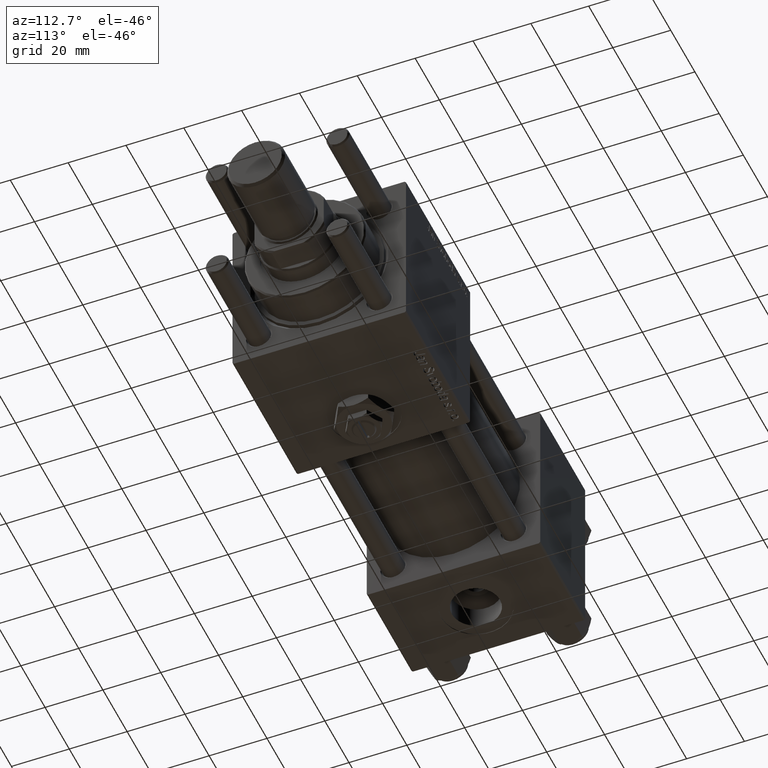
[diagram: clean part render]
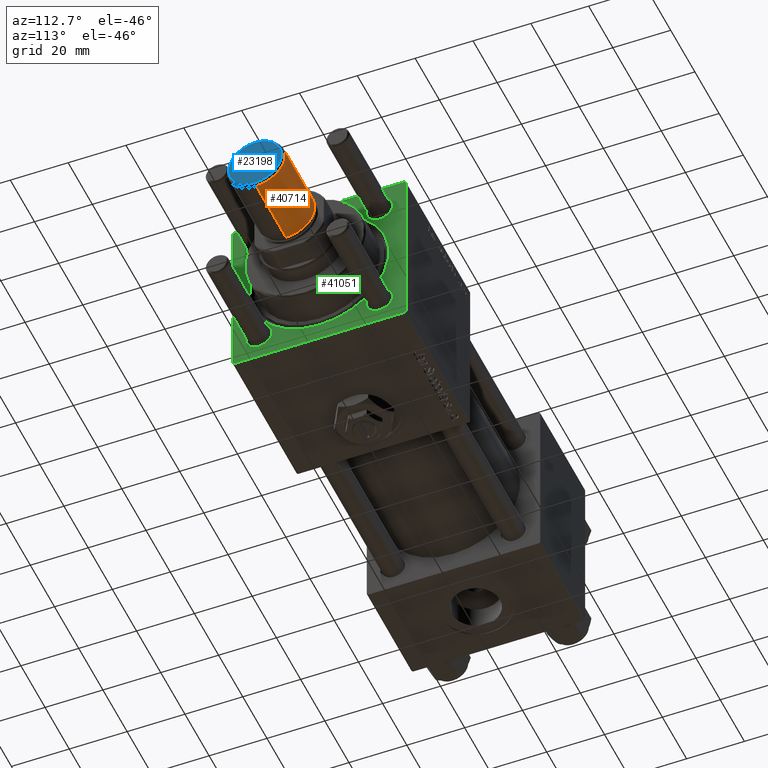
[diagram: same view with three faces highlighted in distinct colors, each labeled with its STEP entity id]
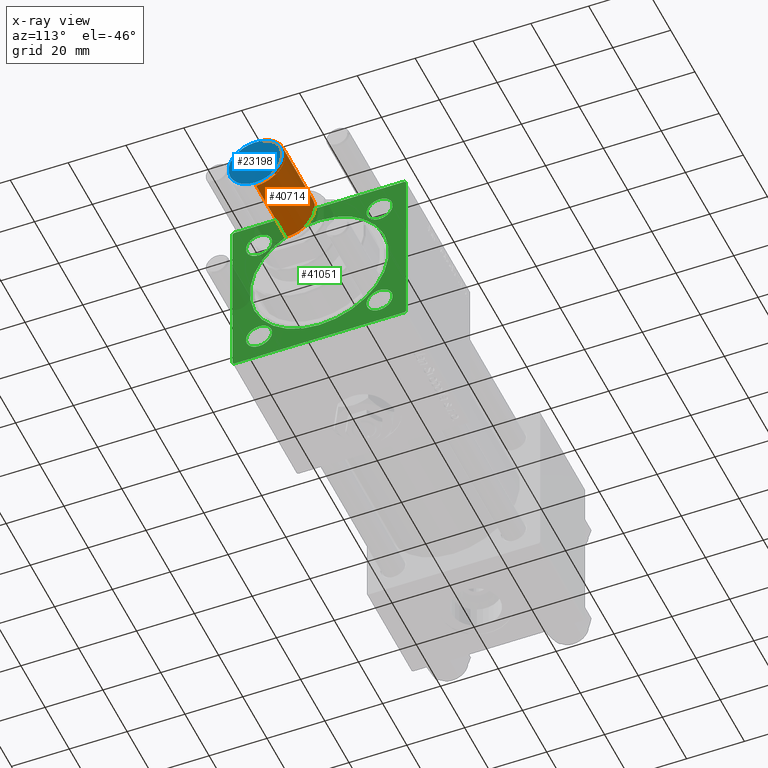
[diagram: x-ray of the same camera — body ghosted, the three highlighted faces saturated]
A machine part, auxiliary view with three faces highlighted in distinct colors.
The next image is the same camera in x-ray (body ghosted, the three faces saturated) — at least one of them is partly hidden behind the body in this view.
Their STEP definitions:

[orange] entity #40714 — the highlighted cylindrical surface (edge-blend (fillet) strip) has radius 10 mm, axis along (1, -0, -0).
#270 = ORIENTED_EDGE ( 'NONE', *, *, #18712, .F. ) ;
#2045 = VERTEX_POINT ( 'NONE', #10399 ) ;
#2431 = DIRECTION ( 'NONE',  ( -0.000000000000000000, -0.000000000000000000, 1.000000000000000000 ) ) ;
#6396 = CARTESIAN_POINT ( 'NONE',  ( 0.000000000000000000, 0.000000000000000000, 25.50000000000000000 ) ) ;
#7378 = EDGE_CURVE ( 'NONE', #24762, #2045, #30503, .T. ) ;
#8332 = VECTOR ( 'NONE', #40388, 1000.000000000000000 ) ;
#9000 = VERTEX_POINT ( 'NONE', #10221 ) ;
#10221 = CARTESIAN_POINT ( 'NONE',  ( -10.00000000000000000, 0.000000000000000000, 0.8000000000000055955 ) ) ;
#10399 = CARTESIAN_POINT ( 'NONE',  ( 10.00000000000000000, 1.224646799147353256E-15, 0.8000000000000055955 ) ) ;
#13096 = ORIENTED_EDGE ( 'NONE', *, *, #7378, .T. ) ;
#13770 = AXIS2_PLACEMENT_3D ( 'NONE', #30326, #2431, #16798 ) ;
#13809 = CARTESIAN_POINT ( 'NONE',  ( 0.000000000000000000, 0.000000000000000000, 25.50000000000000000 ) ) ;
#16798 = DIRECTION ( 'NONE',  ( 1.000000000000000000, 0.000000000000000000, 0.000000000000000000 ) ) ;
#17271 = CARTESIAN_POINT ( 'NONE',  ( 10.00000000000000000, 1.224646799147353256E-15, 25.50000000000000000 ) ) ;
#18086 = DIRECTION ( 'NONE',  ( -0.000000000000000000, -0.000000000000000000, -1.000000000000000000 ) ) ;
#18169 = CARTESIAN_POINT ( 'NONE',  ( -10.00000000000000000, 0.000000000000000000, 25.50000000000000000 ) ) ;
#18712 = EDGE_CURVE ( 'NONE', #24762, #24469, #54694, .T. ) ;
#19658 = AXIS2_PLACEMENT_3D ( 'NONE', #6396, #48691, #24686 ) ;
#24469 = VERTEX_POINT ( 'NONE', #18169 ) ;
#24686 = DIRECTION ( 'NONE',  ( -1.000000000000000000, 0.000000000000000000, 0.000000000000000000 ) ) ;
#24762 = VERTEX_POINT ( 'NONE', #48749 ) ;
#29796 = CYLINDRICAL_SURFACE ( 'NONE', #19658, 10.00000000000000000 ) ;
#30326 = CARTESIAN_POINT ( 'NONE',  ( 0.000000000000000000, 0.000000000000000000, 0.8000000000000055955 ) ) ;
#30503 = LINE ( 'NONE', #17271, #8332 ) ;
#32975 = CIRCLE ( 'NONE', #13770, 10.00000000000000000 ) ;
#36998 = CARTESIAN_POINT ( 'NONE',  ( -10.00000000000000000, 0.000000000000000000, 25.50000000000000000 ) ) ;
#37229 = DIRECTION ( 'NONE',  ( 0.000000000000000000, 0.000000000000000000, 1.000000000000000000 ) ) ;
#37517 = DIRECTION ( 'NONE',  ( 1.000000000000000000, 0.000000000000000000, 0.000000000000000000 ) ) ;
#37599 = EDGE_CURVE ( 'NONE', #2045, #9000, #32975, .T. ) ;
#38290 = EDGE_LOOP ( 'NONE', ( #270, #13096, #42536, #44676 ) ) ;
#38935 = VECTOR ( 'NONE', #18086, 1000.000000000000000 ) ;
#39091 = FACE_OUTER_BOUND ( 'NONE', #38290, .T. ) ;
#40388 = DIRECTION ( 'NONE',  ( -0.000000000000000000, -0.000000000000000000, -1.000000000000000000 ) ) ;
#40714 = ADVANCED_FACE ( 'NONE', ( #39091 ), #29796, .T. ) ;
#41510 = LINE ( 'NONE', #36998, #38935 ) ;
#42536 = ORIENTED_EDGE ( 'NONE', *, *, #37599, .T. ) ;
#43193 = AXIS2_PLACEMENT_3D ( 'NONE', #13809, #37229, #37517 ) ;
#44676 = ORIENTED_EDGE ( 'NONE', *, *, #49117, .F. ) ;
#48691 = DIRECTION ( 'NONE',  ( -0.000000000000000000, -0.000000000000000000, -1.000000000000000000 ) ) ;
#48749 = CARTESIAN_POINT ( 'NONE',  ( 10.00000000000000000, 1.224646799147353256E-15, 25.50000000000000000 ) ) ;
#49117 = EDGE_CURVE ( 'NONE', #24469, #9000, #41510, .T. ) ;
#54694 = CIRCLE ( 'NONE', #43193, 10.00000000000000000 ) ;

[blue] entity #23198 — the highlighted planar face has unit normal (-1, 0, 0).
#848 = DIRECTION ( 'NONE',  ( 0.000000000000000000, 0.000000000000000000, 1.000000000000000000 ) ) ;
#1341 = CIRCLE ( 'NONE', #56931, 9.199999999999992184 ) ;
#3743 = DIRECTION ( 'NONE',  ( 1.000000000000000000, 0.000000000000000000, 0.000000000000000000 ) ) ;
#6844 = ORIENTED_EDGE ( 'NONE', *, *, #15214, .T. ) ;
#10538 = VERTEX_POINT ( 'NONE', #20020 ) ;
#15214 = EDGE_CURVE ( 'NONE', #16754, #10538, #51687, .T. ) ;
#16754 = VERTEX_POINT ( 'NONE', #17088 ) ;
#17088 = CARTESIAN_POINT ( 'NONE',  ( -9.199999999999992184, 1.175660927181458645E-15, 0.000000000000000000 ) ) ;
#19125 = DIRECTION ( 'NONE',  ( 1.000000000000000000, 0.000000000000000000, -0.000000000000000000 ) ) ;
#20020 = CARTESIAN_POINT ( 'NONE',  ( 9.199999999999992184, 0.000000000000000000, 0.000000000000000000 ) ) ;
#20161 = DIRECTION ( 'NONE',  ( 1.000000000000000000, 0.000000000000000000, 0.000000000000000000 ) ) ;
#23198 = ADVANCED_FACE ( 'NONE', ( #59369 ), #27854, .F. ) ;
#27854 = PLANE ( 'NONE',  #46127 ) ;
#29617 = AXIS2_PLACEMENT_3D ( 'NONE', #31354, #36430, #3743 ) ;
#31354 = CARTESIAN_POINT ( 'NONE',  ( 0.000000000000000000, 0.000000000000000000, 0.000000000000000000 ) ) ;
#32636 = EDGE_CURVE ( 'NONE', #10538, #16754, #1341, .T. ) ;
#36430 = DIRECTION ( 'NONE',  ( -0.000000000000000000, -0.000000000000000000, -1.000000000000000000 ) ) ;
#41574 = EDGE_LOOP ( 'NONE', ( #53356, #6844 ) ) ;
#46127 = AXIS2_PLACEMENT_3D ( 'NONE', #51260, #848, #19125 ) ;
#51260 = CARTESIAN_POINT ( 'NONE',  ( 0.000000000000000000, 0.000000000000000000, 0.000000000000000000 ) ) ;
#51687 = CIRCLE ( 'NONE', #29617, 9.199999999999992184 ) ;
#53356 = ORIENTED_EDGE ( 'NONE', *, *, #32636, .T. ) ;
#56211 = CARTESIAN_POINT ( 'NONE',  ( 0.000000000000000000, 0.000000000000000000, 0.000000000000000000 ) ) ;
#56931 = AXIS2_PLACEMENT_3D ( 'NONE', #56211, #57086, #20161 ) ;
#57086 = DIRECTION ( 'NONE',  ( -0.000000000000000000, -0.000000000000000000, -1.000000000000000000 ) ) ;
#59369 = FACE_OUTER_BOUND ( 'NONE', #41574, .T. ) ;

[green] entity #41051 — the highlighted planar face has unit normal (-1, 0, 0).
#110 = EDGE_CURVE ( 'NONE', #46878, #16614, #46703, .T. ) ;
#364 = FACE_BOUND ( 'NONE', #9392, .T. ) ;
#918 = DIRECTION ( 'NONE',  ( 0.000000000000000000, 0.000000000000000000, 1.000000000000000000 ) ) ;
#967 = DIRECTION ( 'NONE',  ( -1.000000000000000000, 0.000000000000000000, -0.000000000000000000 ) ) ;
#1037 = ORIENTED_EDGE ( 'NONE', *, *, #44187, .T. ) ;
#1484 = CARTESIAN_POINT ( 'NONE',  ( 148.0000000000000000, -20.84999999999999076, 20.85000000000000497 ) ) ;
#1856 = VECTOR ( 'NONE', #4844, 1000.000000000000114 ) ;
#1903 = EDGE_CURVE ( 'NONE', #31122, #41030, #48562, .T. ) ;
#2242 = VERTEX_POINT ( 'NONE', #47537 ) ;
#2552 = CIRCLE ( 'NONE', #11142, 4.500000000000017764 ) ;
#2691 = EDGE_CURVE ( 'NONE', #42427, #39021, #2552, .T. ) ;
#3554 = CARTESIAN_POINT ( 'NONE',  ( 148.0000000000000000, 30.00000000000000000, -29.49999999999999289 ) ) ;
#4005 = AXIS2_PLACEMENT_3D ( 'NONE', #7614, #29840, #7914 ) ;
#4576 = AXIS2_PLACEMENT_3D ( 'NONE', #27123, #45727, #9409 ) ;
#4844 = DIRECTION ( 'NONE',  ( -0.000000000000000000, -0.7071067811865474617, -0.7071067811865474617 ) ) ;
#5514 = CIRCLE ( 'NONE', #39030, 4.500000000000017764 ) ;
#5546 = CIRCLE ( 'NONE', #11256, 24.00000000000003908 ) ;
#5890 = CARTESIAN_POINT ( 'NONE',  ( 148.0000000000000000, 30.00000000000000000, -29.49999999999997868 ) ) ;
#6826 = AXIS2_PLACEMENT_3D ( 'NONE', #48854, #26333, #12826 ) ;
#7156 = DIRECTION ( 'NONE',  ( -0.000000000000000000, 0.7071067811865474617, 0.7071067811865474617 ) ) ;
#7511 = EDGE_CURVE ( 'NONE', #44298, #23513, #47609, .T. ) ;
#7614 = CARTESIAN_POINT ( 'NONE',  ( 148.0000000000000000, 20.84999999999999787, 20.85000000000000142 ) ) ;
#7914 = DIRECTION ( 'NONE',  ( 0.000000000000000000, 0.000000000000000000, 1.000000000000000000 ) ) ;
#8195 = EDGE_LOOP ( 'NONE', ( #49791, #43462 ) ) ;
#8541 = CARTESIAN_POINT ( 'NONE',  ( 148.0000000000000000, 0.000000000000000000, 0.000000000000000000 ) ) ;
#8934 = EDGE_CURVE ( 'NONE', #32318, #21052, #19799, .T. ) ;
#9100 = EDGE_CURVE ( 'NONE', #14949, #41706, #10294, .T. ) ;
#9388 = VERTEX_POINT ( 'NONE', #25188 ) ;
#9391 = CARTESIAN_POINT ( 'NONE',  ( 148.0000000000000000, -20.84999999999999076, 20.85000000000000497 ) ) ;
#9392 = EDGE_LOOP ( 'NONE', ( #23575, #17628 ) ) ;
#9409 = DIRECTION ( 'NONE',  ( 0.000000000000000000, 0.000000000000000000, 1.000000000000000000 ) ) ;
#9612 = ORIENTED_EDGE ( 'NONE', *, *, #26142, .T. ) ;
#10294 = CIRCLE ( 'NONE', #4576, 4.500000000000017764 ) ;
#10625 = EDGE_CURVE ( 'NONE', #9388, #54661, #20608, .T. ) ;
#11142 = AXIS2_PLACEMENT_3D ( 'NONE', #39925, #49544, #45637 ) ;
#11256 = AXIS2_PLACEMENT_3D ( 'NONE', #8541, #46058, #26550 ) ;
#12069 = VERTEX_POINT ( 'NONE', #52747 ) ;
#12826 = DIRECTION ( 'NONE',  ( 0.000000000000000000, 0.000000000000000000, 1.000000000000000000 ) ) ;
#13914 = LINE ( 'NONE', #54157, #17168 ) ;
#13964 = DIRECTION ( 'NONE',  ( -1.000000000000000000, 0.000000000000000000, -0.000000000000000000 ) ) ;
#14097 = CARTESIAN_POINT ( 'NONE',  ( 148.0000000000000000, -29.50000000000000000, 29.99999999999999289 ) ) ;
#14430 = CARTESIAN_POINT ( 'NONE',  ( 148.0000000000000000, -30.00000000000000000, 29.49999999999999289 ) ) ;
#14626 = EDGE_CURVE ( 'NONE', #37764, #32318, #45961, .T. ) ;
#14949 = VERTEX_POINT ( 'NONE', #15740 ) ;
#15020 = DIRECTION ( 'NONE',  ( 0.000000000000000000, -1.000000000000000000, -1.156482317317871478E-16 ) ) ;
#15174 = EDGE_CURVE ( 'NONE', #9388, #47104, #13914, .T. ) ;
#15457 = DIRECTION ( 'NONE',  ( 0.000000000000000000, -1.000000000000000000, -1.156482317317871478E-16 ) ) ;
#15740 = CARTESIAN_POINT ( 'NONE',  ( 148.0000000000000000, 20.84999999999999787, -16.34999999999998366 ) ) ;
#16614 = VERTEX_POINT ( 'NONE', #35111 ) ;
#17168 = VECTOR ( 'NONE', #35838, 1000.000000000000114 ) ;
#17628 = ORIENTED_EDGE ( 'NONE', *, *, #20356, .T. ) ;
#18343 = FACE_BOUND ( 'NONE', #50709, .T. ) ;
#18975 = DIRECTION ( 'NONE',  ( 0.000000000000000000, 0.000000000000000000, 1.000000000000000000 ) ) ;
#19519 = LINE ( 'NONE', #56153, #25361 ) ;
#19799 = LINE ( 'NONE', #51936, #50595 ) ;
#20356 = EDGE_CURVE ( 'NONE', #39021, #42427, #42266, .T. ) ;
#20608 = LINE ( 'NONE', #21496, #25667 ) ;
#21052 = VERTEX_POINT ( 'NONE', #26116 ) ;
#21496 = CARTESIAN_POINT ( 'NONE',  ( 148.0000000000000000, 30.00000000000000000, 30.00000000000000000 ) ) ;
#21527 = ORIENTED_EDGE ( 'NONE', *, *, #10625, .F. ) ;
#22444 = CIRCLE ( 'NONE', #47349, 4.500000000000017764 ) ;
#23179 = CIRCLE ( 'NONE', #4005, 4.500000000000017764 ) ;
#23513 = VERTEX_POINT ( 'NONE', #28360 ) ;
#23575 = ORIENTED_EDGE ( 'NONE', *, *, #2691, .T. ) ;
#25188 = CARTESIAN_POINT ( 'NONE',  ( 148.0000000000000000, 30.00000000000000000, 29.50000000000000000 ) ) ;
#25361 = VECTOR ( 'NONE', #15020, 1000.000000000000000 ) ;
#25667 = VECTOR ( 'NONE', #48830, 1000.000000000000000 ) ;
#26116 = CARTESIAN_POINT ( 'NONE',  ( 148.0000000000000000, -30.00000000000000000, -29.49999999999998579 ) ) ;
#26142 = EDGE_CURVE ( 'NONE', #41030, #31122, #23179, .T. ) ;
#26333 = DIRECTION ( 'NONE',  ( -1.000000000000000000, 0.000000000000000000, -0.000000000000000000 ) ) ;
#26350 = AXIS2_PLACEMENT_3D ( 'NONE', #55585, #967, #46866 ) ;
#26550 = DIRECTION ( 'NONE',  ( 0.000000000000000000, 0.000000000000000000, 1.000000000000000000 ) ) ;
#26651 = ORIENTED_EDGE ( 'NONE', *, *, #15174, .T. ) ;
#26673 = ORIENTED_EDGE ( 'NONE', *, *, #40110, .T. ) ;
#26979 = CARTESIAN_POINT ( 'NONE',  ( 148.0000000000000000, 29.50000000000000000, 30.00000000000000000 ) ) ;
#27123 = CARTESIAN_POINT ( 'NONE',  ( 148.0000000000000000, 20.84999999999999787, -20.85000000000000142 ) ) ;
#28360 = CARTESIAN_POINT ( 'NONE',  ( 148.0000000000000000, 2.939152317953652628E-15, 24.00000000000003908 ) ) ;
#28555 = FACE_BOUND ( 'NONE', #35783, .T. ) ;
#29840 = DIRECTION ( 'NONE',  ( -1.000000000000000000, 0.000000000000000000, -0.000000000000000000 ) ) ;
#30840 = ORIENTED_EDGE ( 'NONE', *, *, #38535, .T. ) ;
#30932 = CARTESIAN_POINT ( 'NONE',  ( 148.0000000000000000, 20.84999999999999787, 20.85000000000000142 ) ) ;
#31026 = EDGE_CURVE ( 'NONE', #41706, #14949, #53046, .T. ) ;
#31122 = VERTEX_POINT ( 'NONE', #54108 ) ;
#32290 = DIRECTION ( 'NONE',  ( 0.000000000000000000, 0.000000000000000000, 1.000000000000000000 ) ) ;
#32318 = VERTEX_POINT ( 'NONE', #51276 ) ;
#32935 = CARTESIAN_POINT ( 'NONE',  ( 148.0000000000000000, 0.000000000000000000, -24.00000000000003908 ) ) ;
#33348 = FACE_BOUND ( 'NONE', #58343, .T. ) ;
#34397 = ORIENTED_EDGE ( 'NONE', *, *, #44149, .T. ) ;
#35086 = VECTOR ( 'NONE', #48863, 1000.000000000000114 ) ;
#35111 = CARTESIAN_POINT ( 'NONE',  ( 148.0000000000000000, -29.50000000000000000, -30.00000000000000000 ) ) ;
#35783 = EDGE_LOOP ( 'NONE', ( #49159, #42256 ) ) ;
#35838 = DIRECTION ( 'NONE',  ( 0.000000000000000000, -0.7071067811865474617, 0.7071067811865474617 ) ) ;
#36012 = DIRECTION ( 'NONE',  ( 0.000000000000000000, 0.000000000000000000, 1.000000000000000000 ) ) ;
#36694 = DIRECTION ( 'NONE',  ( -1.000000000000000000, 0.000000000000000000, -0.000000000000000000 ) ) ;
#37764 = VERTEX_POINT ( 'NONE', #14097 ) ;
#38535 = EDGE_CURVE ( 'NONE', #12069, #2242, #22444, .T. ) ;
#39021 = VERTEX_POINT ( 'NONE', #49262 ) ;
#39030 = AXIS2_PLACEMENT_3D ( 'NONE', #9391, #36694, #18975 ) ;
#39398 = CARTESIAN_POINT ( 'NONE',  ( 148.0000000000000000, 20.84999999999999787, -20.85000000000000142 ) ) ;
#39548 = CARTESIAN_POINT ( 'NONE',  ( 148.0000000000000000, -29.50000000000000000, -30.00000000000000000 ) ) ;
#39689 = DIRECTION ( 'NONE',  ( -1.000000000000000000, 0.000000000000000000, -0.000000000000000000 ) ) ;
#39925 = CARTESIAN_POINT ( 'NONE',  ( 148.0000000000000000, -20.84999999999999076, -20.85000000000000497 ) ) ;
#40110 = EDGE_CURVE ( 'NONE', #47104, #37764, #19519, .T. ) ;
#41030 = VERTEX_POINT ( 'NONE', #46279 ) ;
#41051 = ADVANCED_FACE ( 'NONE', ( #364, #51082, #18343, #33348, #28555, #41474 ), #51661, .F. ) ;
#41474 = FACE_OUTER_BOUND ( 'NONE', #43733, .T. ) ;
#41706 = VERTEX_POINT ( 'NONE', #58075 ) ;
#42023 = DIRECTION ( 'NONE',  ( -1.000000000000000000, 0.000000000000000000, -0.000000000000000000 ) ) ;
#42256 = ORIENTED_EDGE ( 'NONE', *, *, #53743, .T. ) ;
#42266 = CIRCLE ( 'NONE', #6826, 4.500000000000017764 ) ;
#42427 = VERTEX_POINT ( 'NONE', #53060 ) ;
#42774 = CARTESIAN_POINT ( 'NONE',  ( 148.0000000000000000, 30.00000000000000000, -29.99999999999999289 ) ) ;
#43462 = ORIENTED_EDGE ( 'NONE', *, *, #9100, .T. ) ;
#43733 = EDGE_LOOP ( 'NONE', ( #50381, #34397, #46788, #1037, #21527, #26651, #26673, #58082 ) ) ;
#43763 = LINE ( 'NONE', #39548, #35086 ) ;
#44149 = EDGE_CURVE ( 'NONE', #21052, #16614, #43763, .T. ) ;
#44187 = EDGE_CURVE ( 'NONE', #46878, #54661, #49461, .T. ) ;
#44298 = VERTEX_POINT ( 'NONE', #32935 ) ;
#45637 = DIRECTION ( 'NONE',  ( 0.000000000000000000, 0.000000000000000000, 1.000000000000000000 ) ) ;
#45727 = DIRECTION ( 'NONE',  ( -1.000000000000000000, 0.000000000000000000, -0.000000000000000000 ) ) ;
#45961 = LINE ( 'NONE', #14430, #1856 ) ;
#46058 = DIRECTION ( 'NONE',  ( -1.000000000000000000, 0.000000000000000000, -0.000000000000000000 ) ) ;
#46279 = CARTESIAN_POINT ( 'NONE',  ( 148.0000000000000000, 20.84999999999999787, 25.35000000000001918 ) ) ;
#46679 = AXIS2_PLACEMENT_3D ( 'NONE', #55102, #13964, #32290 ) ;
#46703 = LINE ( 'NONE', #42774, #56259 ) ;
#46788 = ORIENTED_EDGE ( 'NONE', *, *, #110, .F. ) ;
#46866 = DIRECTION ( 'NONE',  ( -0.000000000000000000, 0.000000000000000000, 1.000000000000000000 ) ) ;
#46878 = VERTEX_POINT ( 'NONE', #54959 ) ;
#47104 = VERTEX_POINT ( 'NONE', #26979 ) ;
#47298 = AXIS2_PLACEMENT_3D ( 'NONE', #39398, #39689, #49612 ) ;
#47349 = AXIS2_PLACEMENT_3D ( 'NONE', #1484, #42023, #918 ) ;
#47537 = CARTESIAN_POINT ( 'NONE',  ( 148.0000000000000000, -20.84999999999999076, 16.34999999999998721 ) ) ;
#47609 = CIRCLE ( 'NONE', #46679, 24.00000000000003908 ) ;
#48231 = EDGE_CURVE ( 'NONE', #2242, #12069, #5514, .T. ) ;
#48562 = CIRCLE ( 'NONE', #50509, 4.500000000000017764 ) ;
#48830 = DIRECTION ( 'NONE',  ( 0.000000000000000000, 0.000000000000000000, -1.000000000000000000 ) ) ;
#48854 = CARTESIAN_POINT ( 'NONE',  ( 148.0000000000000000, -20.84999999999999076, -20.85000000000000497 ) ) ;
#48863 = DIRECTION ( 'NONE',  ( 0.000000000000000000, 0.7071067811865474617, -0.7071067811865474617 ) ) ;
#49159 = ORIENTED_EDGE ( 'NONE', *, *, #7511, .T. ) ;
#49233 = DIRECTION ( 'NONE',  ( -1.000000000000000000, 0.000000000000000000, -0.000000000000000000 ) ) ;
#49262 = CARTESIAN_POINT ( 'NONE',  ( 148.0000000000000000, -20.84999999999999076, -16.34999999999998721 ) ) ;
#49461 = LINE ( 'NONE', #3554, #50447 ) ;
#49544 = DIRECTION ( 'NONE',  ( -1.000000000000000000, 0.000000000000000000, -0.000000000000000000 ) ) ;
#49612 = DIRECTION ( 'NONE',  ( 0.000000000000000000, 0.000000000000000000, 1.000000000000000000 ) ) ;
#49791 = ORIENTED_EDGE ( 'NONE', *, *, #31026, .T. ) ;
#50381 = ORIENTED_EDGE ( 'NONE', *, *, #8934, .T. ) ;
#50447 = VECTOR ( 'NONE', #7156, 1000.000000000000114 ) ;
#50509 = AXIS2_PLACEMENT_3D ( 'NONE', #30932, #49233, #36012 ) ;
#50595 = VECTOR ( 'NONE', #57013, 1000.000000000000000 ) ;
#50709 = EDGE_LOOP ( 'NONE', ( #51795, #9612 ) ) ;
#51082 = FACE_BOUND ( 'NONE', #8195, .T. ) ;
#51276 = CARTESIAN_POINT ( 'NONE',  ( 148.0000000000000000, -30.00000000000000000, 29.49999999999999289 ) ) ;
#51661 = PLANE ( 'NONE',  #26350 ) ;
#51795 = ORIENTED_EDGE ( 'NONE', *, *, #1903, .T. ) ;
#51936 = CARTESIAN_POINT ( 'NONE',  ( 148.0000000000000000, -30.00000000000000000, 29.99999999999999289 ) ) ;
#52747 = CARTESIAN_POINT ( 'NONE',  ( 148.0000000000000000, -20.84999999999999076, 25.35000000000002274 ) ) ;
#53046 = CIRCLE ( 'NONE', #47298, 4.500000000000017764 ) ;
#53060 = CARTESIAN_POINT ( 'NONE',  ( 148.0000000000000000, -20.84999999999999076, -25.35000000000002274 ) ) ;
#53743 = EDGE_CURVE ( 'NONE', #23513, #44298, #5546, .T. ) ;
#54108 = CARTESIAN_POINT ( 'NONE',  ( 148.0000000000000000, 20.84999999999999787, 16.34999999999998366 ) ) ;
#54157 = CARTESIAN_POINT ( 'NONE',  ( 148.0000000000000000, 29.50000000000000000, 30.00000000000000000 ) ) ;
#54661 = VERTEX_POINT ( 'NONE', #5890 ) ;
#54959 = CARTESIAN_POINT ( 'NONE',  ( 148.0000000000000000, 29.50000000000000000, -29.99999999999999289 ) ) ;
#55102 = CARTESIAN_POINT ( 'NONE',  ( 148.0000000000000000, 0.000000000000000000, 0.000000000000000000 ) ) ;
#55585 = CARTESIAN_POINT ( 'NONE',  ( 148.0000000000000000, 0.000000000000000000, 0.000000000000000000 ) ) ;
#56153 = CARTESIAN_POINT ( 'NONE',  ( 148.0000000000000000, 30.00000000000000000, 30.00000000000000000 ) ) ;
#56259 = VECTOR ( 'NONE', #15457, 1000.000000000000000 ) ;
#57013 = DIRECTION ( 'NONE',  ( 0.000000000000000000, 0.000000000000000000, -1.000000000000000000 ) ) ;
#58075 = CARTESIAN_POINT ( 'NONE',  ( 148.0000000000000000, 20.84999999999999787, -25.35000000000001918 ) ) ;
#58082 = ORIENTED_EDGE ( 'NONE', *, *, #14626, .T. ) ;
#58343 = EDGE_LOOP ( 'NONE', ( #58471, #30840 ) ) ;
#58471 = ORIENTED_EDGE ( 'NONE', *, *, #48231, .T. ) ;